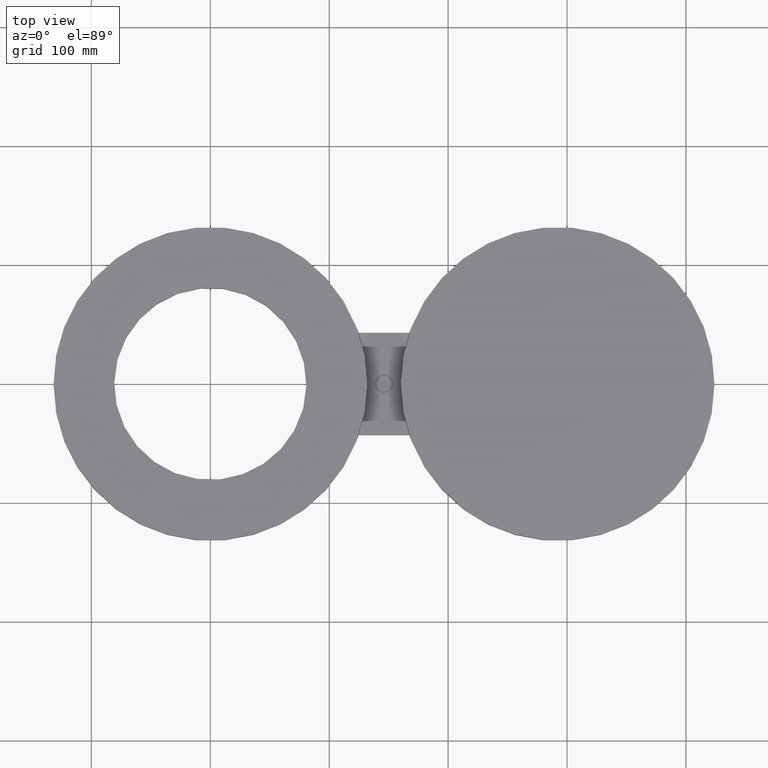
[diagram: clean part render]
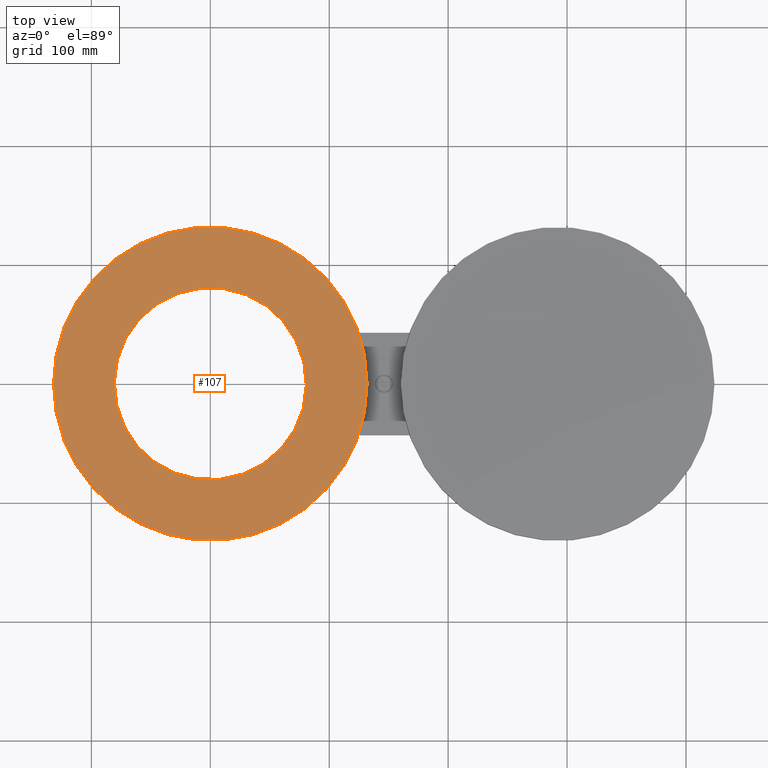
[diagram: same view with one face highlighted and labeled with its STEP entity id]
A machine part, top view. The second image highlights one B-rep face of the part: STEP entity #107.
In plain terms, the highlighted planar face has unit normal (0, 0, 1).
Its self-contained STEP definition (entity closure, byte-faithful):
#65=AXIS2_PLACEMENT_3D('Circle Axis2P3D',#63,#64,$) ;
#78=AXIS2_PLACEMENT_3D('Plane Axis2P3D',#75,#76,#77) ;
#82=AXIS2_PLACEMENT_3D('Circle Axis2P3D',#80,#81,$) ;
#91=AXIS2_PLACEMENT_3D('Circle Axis2P3D',#89,#90,$) ;
#100=AXIS2_PLACEMENT_3D('Circle Axis2P3D',#98,#99,$) ;
#46=CARTESIAN_POINT('Vertex',(-2.79071254682,1.52457321277,0.440000000002)) ;
#60=CARTESIAN_POINT('Vertex',(2.79071254682,-1.52457321277,0.440000000002)) ;
#63=CARTESIAN_POINT('Axis2P3D Location',(8.52336574023E-017,-6.99353086378E-017,0.440000000002)) ;
#75=CARTESIAN_POINT('Axis2P3D Location',(0.,0.,0.440000000002)) ;
#80=CARTESIAN_POINT('Axis2P3D Location',(0.,0.,0.440000000002)) ;
#84=CARTESIAN_POINT('Vertex',(5.19000000002,0.,0.440000000002)) ;
#86=CARTESIAN_POINT('Vertex',(-5.19000000002,6.3559168876E-016,0.440000000002)) ;
#89=CARTESIAN_POINT('Axis2P3D Location',(0.,0.,0.440000000002)) ;
#98=CARTESIAN_POINT('Axis2P3D Location',(0.,8.39223703654E-016,0.440000000002)) ;
#64=DIRECTION('Axis2P3D Direction',(0.,-0.,-0.0393700787402)) ;
#76=DIRECTION('Axis2P3D Direction',(0.,0.,0.0393700787402)) ;
#77=DIRECTION('Axis2P3D XDirection',(0.0393700787402,0.,0.)) ;
#81=DIRECTION('Axis2P3D Direction',(0.,0.,0.0393700787402)) ;
#90=DIRECTION('Axis2P3D Direction',(0.,0.,0.0393700787402)) ;
#99=DIRECTION('Axis2P3D Direction',(0.,0.,0.0393700787402)) ;
#95=ORIENTED_EDGE('',*,*,#88,.T.) ;
#96=ORIENTED_EDGE('',*,*,#93,.T.) ;
#104=ORIENTED_EDGE('',*,*,#102,.F.) ;
#105=ORIENTED_EDGE('',*,*,#67,.F.) ;
#106=FACE_BOUND('',#103,.T.) ;
#107=ADVANCED_FACE('PartBody',(#97,#106),#79,.T.) ;
#66=CIRCLE('generated circle',#65,3.18000000001) ;
#83=CIRCLE('generated circle',#82,5.19000000002) ;
#92=CIRCLE('generated circle',#91,5.19000000002) ;
#101=CIRCLE('generated circle',#100,3.18000000001) ;
#67=EDGE_CURVE('',#61,#47,#66,.F.) ;
#88=EDGE_CURVE('',#85,#87,#83,.T.) ;
#93=EDGE_CURVE('',#87,#85,#92,.T.) ;
#102=EDGE_CURVE('',#47,#61,#101,.T.) ;
#94=EDGE_LOOP('',(#95,#96)) ;
#103=EDGE_LOOP('',(#104,#105)) ;
#97=FACE_OUTER_BOUND('',#94,.T.) ;
#79=PLANE('',#78) ;
#47=VERTEX_POINT('',#46) ;
#61=VERTEX_POINT('',#60) ;
#85=VERTEX_POINT('',#84) ;
#87=VERTEX_POINT('',#86) ;